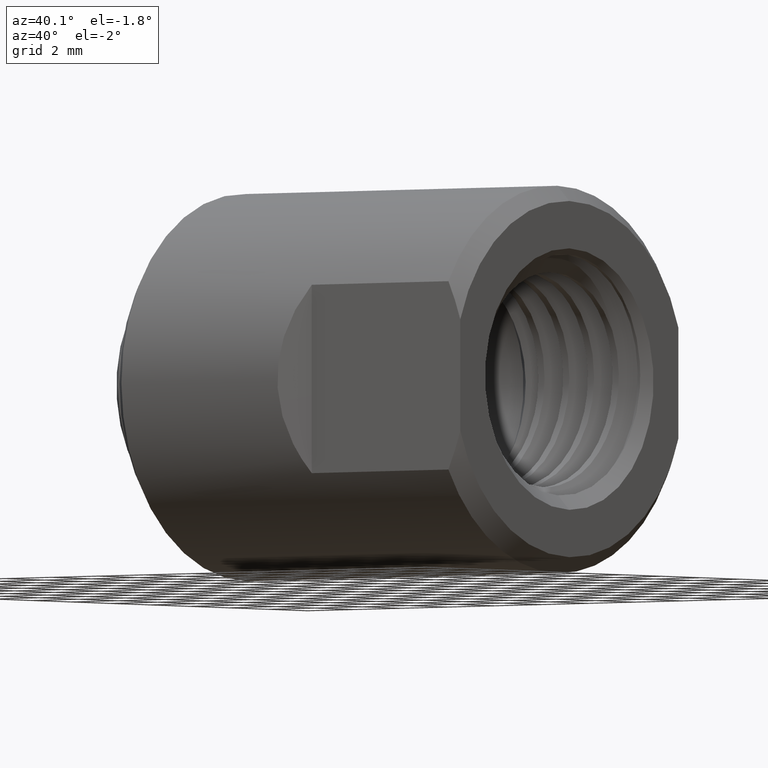
[diagram: clean part render]
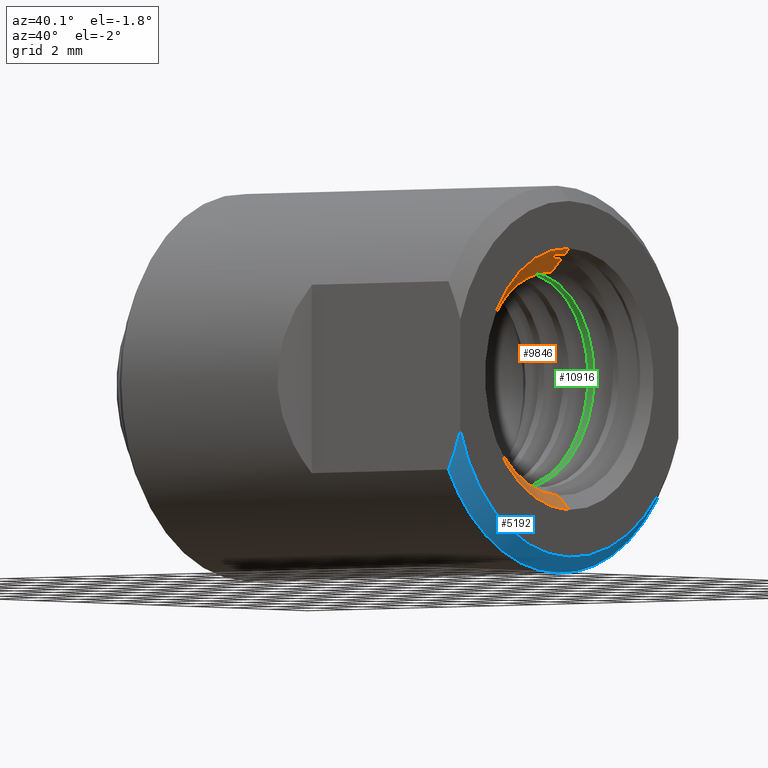
[diagram: same view with three faces highlighted in distinct colors, each labeled with its STEP entity id]
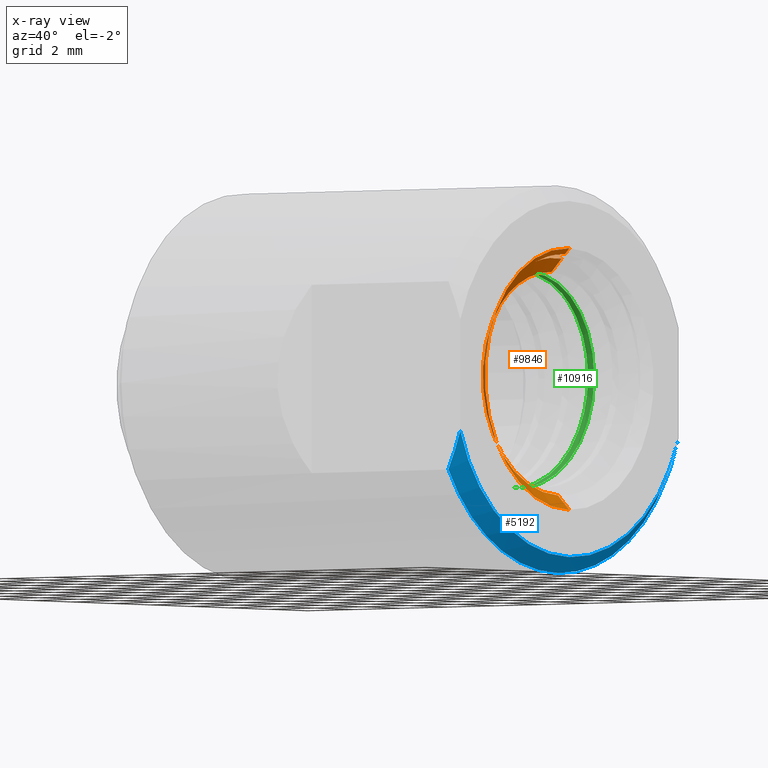
[diagram: x-ray of the same camera — body ghosted, the three highlighted faces saturated]
A machine part, auxiliary view with three faces highlighted in distinct colors.
The next image is the same camera in x-ray (body ghosted, the three faces saturated) — at least one of them is partly hidden behind the body in this view.
Their STEP definitions:

[orange] entity #9846 — the highlighted conical surface has half-angle 45 deg.
#67 = EDGE_CURVE ( 'NONE', #739, #460, #4505, .T. ) ;
#121 = DIRECTION ( 'NONE',  ( 0.0000000000000000000, 0.0000000000000000000, 1.000000000000000000 ) ) ;
#299 = CARTESIAN_POINT ( 'NONE',  ( 0.4915527447916668291, -0.03930680124036260714, 0.1564951155856732778 ) ) ;
#379 = EDGE_CURVE ( 'NONE', #5876, #460, #3109, .T. ) ;
#410 = CARTESIAN_POINT ( 'NONE',  ( 0.4776101803002633095, -0.08158505850454679520, -0.1226726051499598125 ) ) ;
#460 = VERTEX_POINT ( 'NONE', #3904 ) ;
#491 = CARTESIAN_POINT ( 'NONE',  ( 0.4895870464638107933, -0.03899068432501045373, 0.1545434023646650445 ) ) ;
#655 = B_SPLINE_CURVE_WITH_KNOTS ( 'NONE', 3,
 ( #5055, #9853, #299, #8841, #3184, #4401 ),
 .UNSPECIFIED., .F., .F.,
 ( 4, 2, 4 ),
 ( 0.0000000000000000000, 0.0007594702687717084936, 0.001518940537543416987 ),
 .UNSPECIFIED. ) ;
#691 = CARTESIAN_POINT ( 'NONE',  ( 0.4701904074059487515, -0.09903312697300141465, 0.09883611300029747360 ) ) ;
#739 = VERTEX_POINT ( 'NONE', #10100 ) ;
#1244 = ORIENTED_EDGE ( 'NONE', *, *, #67, .F. ) ;
#1283 = ORIENTED_EDGE ( 'NONE', *, *, #4846, .F. ) ;
#1286 = CARTESIAN_POINT ( 'NONE',  ( 0.4758200099182061660, -0.1240526278306743058, -0.07610434665026920287 ) ) ;
#1349 = CARTESIAN_POINT ( 'NONE',  ( 0.4741695180830897138, -0.1419164985477894270, -0.02373065115988236273 ) ) ;
#1460 = CARTESIAN_POINT ( 'NONE',  ( 0.4708867791982034867, -0.1148343129867646084, 0.08114299980321745820 ) ) ;
#1609 = CARTESIAN_POINT ( 'NONE',  ( 0.4915527447916666626, -0.05821412288664623569, 0.1501635858038432580 ) ) ;
#1742 = ORIENTED_EDGE ( 'NONE', *, *, #6046, .T. ) ;
#1766 = CARTESIAN_POINT ( 'NONE',  ( 0.4706516482664995782, -0.1099144318919291347, 0.08731569001908691396 ) ) ;
#2036 = FACE_OUTER_BOUND ( 'NONE', #2793, .T. ) ;
#2160 = DIRECTION ( 'NONE',  ( 0.0000000000000000000, 0.0000000000000000000, -1.000000000000000000 ) ) ;
#2189 = DIRECTION ( 'NONE',  ( -1.000000000000000000, -0.0000000000000000000, -0.0000000000000000000 ) ) ;
#2233 = CARTESIAN_POINT ( 'NONE',  ( 0.4762800683238508914, -0.1154027267367484649, -0.08942628109433255201 ) ) ;
#2287 = CARTESIAN_POINT ( 'NONE',  ( 0.4755831574169424592, -0.1278590683751489321, -0.06901871546260902879 ) ) ;
#2345 = VECTOR ( 'NONE', #8581, 39.37007874015748143 ) ;
#2381 = CIRCLE ( 'NONE', #8006, 0.1385000000000001230 ) ;
#2391 = AXIS2_PLACEMENT_3D ( 'NONE', #5854, #9640, #2160 ) ;
#2407 = CARTESIAN_POINT ( 'NONE',  ( 0.4716115838939051175, -0.1275322393848584979, 0.06091556452336734789 ) ) ;
#2793 = EDGE_LOOP ( 'NONE', ( #6738, #9620, #8803, #1742, #7848, #1244, #1283, #6464 ) ) ;
#3109 = LINE ( 'NONE', #6938, #9951 ) ;
#3184 = CARTESIAN_POINT ( 'NONE',  ( 0.4915527447916666626, -0.009908120083162172756, 0.1610527447916245691 ) ) ;
#3289 = CARTESIAN_POINT ( 'NONE',  ( 0.4771571906574074706, -0.09406711002521324361, -0.1127962546387063225 ) ) ;
#3349 = CARTESIAN_POINT ( 'NONE',  ( 0.4728075541703335993, -0.1405473323777607086, 0.02367403333333943996 ) ) ;
#3670 = VERTEX_POINT ( 'NONE', #5109 ) ;
#3692 = EDGE_CURVE ( 'NONE', #7106, #3670, #7429, .T. ) ;
#3904 = CARTESIAN_POINT ( 'NONE',  ( 0.4989999999999999991, 2.063529856563291748E-17, 0.1685000000000001219 ) ) ;
#4284 = CARTESIAN_POINT ( 'NONE',  ( 0.4737127277950652915, -0.1432094709835527724, -0.007964845348402339875 ) ) ;
#4297 = AXIS2_PLACEMENT_3D ( 'NONE', #9864, #8305, #12084 ) ;
#4400 = CARTESIAN_POINT ( 'NONE',  ( 0.4796685091265875389, -0.01599028763964425309, -0.1491685091265876340 ) ) ;
#4401 = CARTESIAN_POINT ( 'NONE',  ( 0.4915527447916667181, -6.863352009929323174E-13, 0.1610527447916667299 ) ) ;
#4455 = CARTESIAN_POINT ( 'NONE',  ( 0.4699631494161579659, -0.09302570181943249639, 0.1042078400151091183 ) ) ;
#4505 = CIRCLE ( 'NONE', #4297, 0.1685000000000001219 ) ;
#4846 = EDGE_CURVE ( 'NONE', #7383, #739, #9324, .T. ) ;
#5055 = CARTESIAN_POINT ( 'NONE',  ( 0.4915527447916666626, -0.05821412288664623569, 0.1501635858038432580 ) ) ;
#5096 = CARTESIAN_POINT ( 'NONE',  ( 0.4800945554337723853, 1.832004934818407092E-17, -0.1495945554337724526 ) ) ;
#5109 = CARTESIAN_POINT ( 'NONE',  ( 0.4857593468793920954, 3.588447072287897684E-15, 0.1552593468793923848 ) ) ;
#5222 = CARTESIAN_POINT ( 'NONE',  ( 0.4769367087328941213, -0.09993016862499785880, -0.1073310452335543286 ) ) ;
#5372 = VERTEX_POINT ( 'NONE', #10505 ) ;
#5854 = CARTESIAN_POINT ( 'NONE',  ( 0.4989999999999999991, 0.0000000000000000000, 0.0000000000000000000 ) ) ;
#5876 = VERTEX_POINT ( 'NONE', #9598 ) ;
#6026 = CARTESIAN_POINT ( 'NONE',  ( 0.4915527447916666626, -0.05821412288664623569, 0.1501635858038432580 ) ) ;
#6046 = EDGE_CURVE ( 'NONE', #6884, #5876, #655, .T. ) ;
#6110 = CARTESIAN_POINT ( 'NONE',  ( 0.4751131348367165219, -0.1341717202733407610, -0.05452806735980102182 ) ) ;
#6173 = CARTESIAN_POINT ( 'NONE',  ( 0.4792245641552336788, -0.03148137816995256327, -0.1462263711820968592 ) ) ;
#6233 = CARTESIAN_POINT ( 'NONE',  ( 0.4778383595502754821, -0.07501463675179659285, -0.1270575704882246360 ) ) ;
#6345 = CARTESIAN_POINT ( 'NONE',  ( 0.4690000000000005276, -0.06640731048727288588, 0.1215414296190684140 ) ) ;
#6406 = CARTESIAN_POINT ( 'NONE',  ( 0.4694899725545191305, -0.08029849742260322665, 0.1137253219688434819 ) ) ;
#6464 = ORIENTED_EDGE ( 'NONE', *, *, #12212, .T. ) ;
#6484 = DIRECTION ( 'NONE',  ( 0.7071067811865469066, 8.659560562354940254E-17, 0.7071067811865481278 ) ) ;
#6738 = ORIENTED_EDGE ( 'NONE', *, *, #8365, .T. ) ;
#6884 = VERTEX_POINT ( 'NONE', #1609 ) ;
#6938 = CARTESIAN_POINT ( 'NONE',  ( 0.4989999999999999991, 2.063529856563291748E-17, 0.1685000000000001219 ) ) ;
#6996 = CARTESIAN_POINT ( 'NONE',  ( 0.4785305098134057800, -0.05397527334740876565, -0.1380697646374443310 ) ) ;
#7106 = VERTEX_POINT ( 'NONE', #8965 ) ;
#7174 = CARTESIAN_POINT ( 'NONE',  ( 0.4723340870181859108, -0.1365959076660634708, 0.03900049702243495175 ) ) ;
#7383 = VERTEX_POINT ( 'NONE', #8767 ) ;
#7429 = LINE ( 'NONE', #8370, #11962 ) ;
#7514 = B_SPLINE_CURVE_WITH_KNOTS ( 'NONE', 3,
 ( #5096, #4400, #6173, #6996, #10011, #6233, #410, #3289, #5222, #9118, #2233, #1286, #2287, #6110, #9063, #9952, #1349, #4284, #8113, #11955, #3349, #7174, #11015, #2407, #10067, #1460, #1766, #691, #4455, #6406, #9240, #6345 ),
 .UNSPECIFIED., .F., .F.,
 ( 4, 2, 2, 2, 2, 2, 2, 2, 2, 2, 2, 2, 2, 2, 2, 4 ),
 ( 0.01070975112320856140, 0.01191170811350595812, 0.01251268660865465648, 0.01311366510380335484, 0.01371464359895205321, 0.01431562209410074983, 0.01491660058924944819, 0.01551757908439814655, 0.01611855757954684665, 0.01671953607469554154, 0.01732051456984424337, 0.01792149306499294173, 0.01852247156014164009, 0.01912345005529033845, 0.01972442855043903681, 0.02032540704558773517 ),
 .UNSPECIFIED. ) ;
#7693 = CARTESIAN_POINT ( 'NONE',  ( 0.4989999999999999991, 0.0000000000000000000, -0.1685000000000001219 ) ) ;
#7848 = ORIENTED_EDGE ( 'NONE', *, *, #379, .T. ) ;
#8006 = AXIS2_PLACEMENT_3D ( 'NONE', #8713, #2189, #121 ) ;
#8113 = CARTESIAN_POINT ( 'NONE',  ( 0.4734955935724519671, -0.1432149389344598289, -7.357591546745891910E-05 ) ) ;
#8147 = CARTESIAN_POINT ( 'NONE',  ( 0.4857593468793920954, 3.588447072287897684E-15, 0.1552593468793923848 ) ) ;
#8305 = DIRECTION ( 'NONE',  ( -1.000000000000000000, -0.0000000000000000000, -0.0000000000000000000 ) ) ;
#8365 = EDGE_CURVE ( 'NONE', #5372, #7106, #2381, .T. ) ;
#8370 = CARTESIAN_POINT ( 'NONE',  ( 0.4989999999999999991, 2.063529856563291748E-17, 0.1685000000000001219 ) ) ;
#8581 = DIRECTION ( 'NONE',  ( 0.7071067811865469066, 0.0000000000000000000, -0.7071067811865481278 ) ) ;
#8713 = CARTESIAN_POINT ( 'NONE',  ( 0.4690000000000000280, 0.0000000000000000000, 0.0000000000000000000 ) ) ;
#8767 = CARTESIAN_POINT ( 'NONE',  ( 0.4800945554337723853, 1.832004934818407092E-17, -0.1495945554337724526 ) ) ;
#8803 = ORIENTED_EDGE ( 'NONE', *, *, #9388, .T. ) ;
#8841 = CARTESIAN_POINT ( 'NONE',  ( 0.4915527447916666626, -0.01986872112651999131, 0.1601280105000969511 ) ) ;
#8965 = CARTESIAN_POINT ( 'NONE',  ( 0.4690000000000000280, 1.696135816819085983E-17, 0.1385000000000001230 ) ) ;
#9063 = CARTESIAN_POINT ( 'NONE',  ( 0.4748777633786478436, -0.1367227979840052454, -0.04706050369823795709 ) ) ;
#9091 = CARTESIAN_POINT ( 'NONE',  ( 0.4866895328469820203, -0.009708757961036136239, 0.1561895328469848077 ) ) ;
#9118 = CARTESIAN_POINT ( 'NONE',  ( 0.4765032948478395980, -0.1105746560806090267, -0.09566864557892285070 ) ) ;
#9240 = CARTESIAN_POINT ( 'NONE',  ( 0.4692478781841656899, -0.07354991533216366506, 0.1179213467346184735 ) ) ;
#9324 = LINE ( 'NONE', #7693, #2345 ) ;
#9388 = EDGE_CURVE ( 'NONE', #3670, #6884, #11288, .T. ) ;
#9598 = CARTESIAN_POINT ( 'NONE',  ( 0.4915527447916667181, -6.863352009929323174E-13, 0.1610527447916667299 ) ) ;
#9620 = ORIENTED_EDGE ( 'NONE', *, *, #3692, .T. ) ;
#9640 = DIRECTION ( 'NONE',  ( 1.000000000000000000, 0.0000000000000000000, 0.0000000000000000000 ) ) ;
#9846 = ADVANCED_FACE ( 'NONE', ( #2036 ), #12427, .F. ) ;
#9853 = CARTESIAN_POINT ( 'NONE',  ( 0.4915527447916666626, -0.04891633227414004387, 0.1537680730195240542 ) ) ;
#9864 = CARTESIAN_POINT ( 'NONE',  ( 0.4989999999999999991, 0.0000000000000000000, 0.0000000000000000000 ) ) ;
#9951 = VECTOR ( 'NONE', #10784, 39.37007874015748143 ) ;
#9952 = CARTESIAN_POINT ( 'NONE',  ( 0.4744062968716619144, -0.1406006414756844347, -0.03167582413493125193 ) ) ;
#10011 = CARTESIAN_POINT ( 'NONE',  ( 0.4782978605494391799, -0.06123132964561497915, -0.1347485124341986085 ) ) ;
#10067 = CARTESIAN_POINT ( 'NONE',  ( 0.4713657760234282734, -0.1236340552263995585, 0.06797385766248889571 ) ) ;
#10100 = CARTESIAN_POINT ( 'NONE',  ( 0.4989999999999999991, 0.0000000000000000000, -0.1685000000000001219 ) ) ;
#10505 = CARTESIAN_POINT ( 'NONE',  ( 0.4690000000000005276, -0.06640731048727288588, 0.1215414296190684140 ) ) ;
#10784 = DIRECTION ( 'NONE',  ( 0.7071067811865469066, 8.659560562354940254E-17, 0.7071067811865481278 ) ) ;
#10810 = CARTESIAN_POINT ( 'NONE',  ( 0.4905727524547557894, -0.04871766080814701055, 0.1527940354736308515 ) ) ;
#11015 = CARTESIAN_POINT ( 'NONE',  ( 0.4720949244355503449, -0.1339936757899959086, 0.04644907371375061461 ) ) ;
#11288 = B_SPLINE_CURVE_WITH_KNOTS ( 'NONE', 3,
 ( #8147, #9091, #11749, #491, #10810, #6026 ),
 .UNSPECIFIED., .F., .F.,
 ( 4, 2, 4 ),
 ( 0.004019192020958956349, 0.004764128173655891169, 0.005509064326352825121 ),
 .UNSPECIFIED. ) ;
#11749 = CARTESIAN_POINT ( 'NONE',  ( 0.4876417787206582810, -0.01944834193875236844, 0.1562387562076911485 ) ) ;
#11955 = CARTESIAN_POINT ( 'NONE',  ( 0.4730437923442198378, -0.1418951610330292101, 0.01572515111410146410 ) ) ;
#11962 = VECTOR ( 'NONE', #6484, 39.37007874015748143 ) ;
#12084 = DIRECTION ( 'NONE',  ( 0.0000000000000000000, 0.0000000000000000000, 1.000000000000000000 ) ) ;
#12212 = EDGE_CURVE ( 'NONE', #7383, #5372, #7514, .T. ) ;
#12427 = CONICAL_SURFACE ( 'NONE', #2391, 0.1685000000000001219, 0.7853981633974491672 ) ;

[blue] entity #5192 — the highlighted conical surface has half-angle 45 deg.
#1152 = CARTESIAN_POINT ( 'NONE',  ( 0.4867937892024932212, -0.2180000000000000271, -0.1053276808206023707 ) ) ;
#1312 = CIRCLE ( 'NONE', #7922, 0.2495000000000000551 ) ;
#1437 = VERTEX_POINT ( 'NONE', #7348 ) ;
#1480 = CARTESIAN_POINT ( 'NONE',  ( 0.4790000000000000924, 3.055493763872647498E-17, -0.2495000000000001106 ) ) ;
#1524 = DIRECTION ( 'NONE',  ( 0.0000000000000000000, 0.0000000000000000000, 1.000000000000000000 ) ) ;
#1797 = CARTESIAN_POINT ( 'NONE',  ( 0.4790000000000000924, 0.0000000000000000000, 0.0000000000000000000 ) ) ;
#1891 = ORIENTED_EDGE ( 'NONE', *, *, #4448, .F. ) ;
#2294 = FACE_OUTER_BOUND ( 'NONE', #8552, .T. ) ;
#2324 = CARTESIAN_POINT ( 'NONE',  ( 0.4865271152024648882, 0.2180000000000000826, -0.1052806634597102942 ) ) ;
#2434 = EDGE_CURVE ( 'NONE', #11269, #8469, #1312, .T. ) ;
#3068 = CARTESIAN_POINT ( 'NONE',  ( 0.4790000000000000924, 0.2180000000000000271, -0.1213517614210853218 ) ) ;
#3095 = CARTESIAN_POINT ( 'NONE',  ( 0.4936436883126585906, -0.2180000000000000271, -0.08887311717590522242 ) ) ;
#3144 = CARTESIAN_POINT ( 'NONE',  ( 0.4790000000000000924, 0.2180000000000000271, -0.1213517614210853218 ) ) ;
#3152 = CONICAL_SURFACE ( 'NONE', #8961, 0.2495000000000000551, 0.7853981633974491672 ) ;
#3790 = CARTESIAN_POINT ( 'NONE',  ( 0.4790000000000000924, -0.2180000000000000271, -0.1213517614210853496 ) ) ;
#4034 = ORIENTED_EDGE ( 'NONE', *, *, #10189, .F. ) ;
#4237 = DIRECTION ( 'NONE',  ( -1.000000000000000000, -0.0000000000000000000, -0.0000000000000000000 ) ) ;
#4286 = B_SPLINE_CURVE_WITH_KNOTS ( 'NONE', 3,
 ( #8206, #4318, #5134, #2324, #9923, #3144 ),
 .UNSPECIFIED., .F., .F.,
 ( 4, 2, 4 ),
 ( 0.01744746444429472187, 0.01812750414344126149, 0.01880754384258779763 ),
 .UNSPECIFIED. ) ;
#4318 = CARTESIAN_POINT ( 'NONE',  ( 0.4963353650770626069, 0.2180000000000000271, -0.08026198698383904540 ) ) ;
#4448 = EDGE_CURVE ( 'NONE', #9023, #5037, #11475, .T. ) ;
#4484 = CARTESIAN_POINT ( 'NONE',  ( 0.4990000000000000546, 0.0000000000000000000, 0.0000000000000000000 ) ) ;
#5037 = VERTEX_POINT ( 'NONE', #7756 ) ;
#5134 = CARTESIAN_POINT ( 'NONE',  ( 0.4932545631404060549, 0.2180000000000000826, -0.08873306421248332299 ) ) ;
#5192 = ADVANCED_FACE ( 'NONE', ( #2294 ), #3152, .T. ) ;
#5345 = CARTESIAN_POINT ( 'NONE',  ( 0.4790000000000000924, 0.0000000000000000000, 0.0000000000000000000 ) ) ;
#5812 = CIRCLE ( 'NONE', #6023, 0.2495000000000000551 ) ;
#6023 = AXIS2_PLACEMENT_3D ( 'NONE', #1797, #12153, #6492 ) ;
#6118 = CARTESIAN_POINT ( 'NONE',  ( 0.4790000000000000924, 0.0000000000000000000, 0.0000000000000000000 ) ) ;
#6492 = DIRECTION ( 'NONE',  ( 0.0000000000000000000, 0.0000000000000000000, 1.000000000000000000 ) ) ;
#6849 = EDGE_CURVE ( 'NONE', #1437, #5037, #7518, .T. ) ;
#6921 = CARTESIAN_POINT ( 'NONE',  ( 0.4990000000000000546, -0.2180000000000000271, -0.07173736822605079888 ) ) ;
#7314 = DIRECTION ( 'NONE',  ( 0.0000000000000000000, 0.0000000000000000000, 1.000000000000000000 ) ) ;
#7348 = CARTESIAN_POINT ( 'NONE',  ( 0.4990000000000000546, 0.2180000000000000271, -0.07173736822605079888 ) ) ;
#7518 = CIRCLE ( 'NONE', #12127, 0.2295000000000000373 ) ;
#7756 = CARTESIAN_POINT ( 'NONE',  ( 0.4990000000000000546, -0.2180000000000000271, -0.07173736822605079888 ) ) ;
#7922 = AXIS2_PLACEMENT_3D ( 'NONE', #5345, #8069, #9188 ) ;
#8069 = DIRECTION ( 'NONE',  ( -1.000000000000000000, -0.0000000000000000000, -0.0000000000000000000 ) ) ;
#8206 = CARTESIAN_POINT ( 'NONE',  ( 0.4990000000000000546, 0.2180000000000000271, -0.07173736822605079888 ) ) ;
#8469 = VERTEX_POINT ( 'NONE', #1480 ) ;
#8552 = EDGE_LOOP ( 'NONE', ( #4034, #9003, #1891, #9251, #11053 ) ) ;
#8961 = AXIS2_PLACEMENT_3D ( 'NONE', #6118, #4237, #1524 ) ;
#9003 = ORIENTED_EDGE ( 'NONE', *, *, #6849, .T. ) ;
#9023 = VERTEX_POINT ( 'NONE', #3790 ) ;
#9188 = DIRECTION ( 'NONE',  ( 0.0000000000000000000, 0.0000000000000000000, 1.000000000000000000 ) ) ;
#9251 = ORIENTED_EDGE ( 'NONE', *, *, #11441, .F. ) ;
#9636 = CARTESIAN_POINT ( 'NONE',  ( 0.4790000000000000924, -0.2180000000000000271, -0.1213517614210853496 ) ) ;
#9923 = CARTESIAN_POINT ( 'NONE',  ( 0.4828757988457594852, 0.2180000000000000271, -0.1133830941294644984 ) ) ;
#10189 = EDGE_CURVE ( 'NONE', #1437, #11269, #4286, .T. ) ;
#11053 = ORIENTED_EDGE ( 'NONE', *, *, #2434, .F. ) ;
#11269 = VERTEX_POINT ( 'NONE', #3068 ) ;
#11441 = EDGE_CURVE ( 'NONE', #8469, #9023, #5812, .T. ) ;
#11475 = B_SPLINE_CURVE_WITH_KNOTS ( 'NONE', 3,
 ( #9636, #1152, #3095, #6921 ),
 .UNSPECIFIED., .F., .F.,
 ( 4, 4 ),
 ( 0.01238073234789191512, 0.01374081069623237124 ),
 .UNSPECIFIED. ) ;
#12127 = AXIS2_PLACEMENT_3D ( 'NONE', #4484, #12163, #7314 ) ;
#12153 = DIRECTION ( 'NONE',  ( -1.000000000000000000, -0.0000000000000000000, -0.0000000000000000000 ) ) ;
#12163 = DIRECTION ( 'NONE',  ( -1.000000000000000000, -0.0000000000000000000, -0.0000000000000000000 ) ) ;

[green] entity #10916 — the highlighted cylindrical surface (partial cylindrical patch) has radius 3.5179 mm, axis along (-1, -0, -0).
#21 = CARTESIAN_POINT ( 'NONE',  ( 0.4233020516686449297, 0.01502659019250217852, 0.1377406292639371810 ) ) ;
#82 = CARTESIAN_POINT ( 'NONE',  ( 0.4196011897962964587, 0.08487903630135031074, 0.1094456596478362992 ) ) ;
#148 = CARTESIAN_POINT ( 'NONE',  ( 0.4162615842808974342, 0.1276208349118939656, 0.05437963125190835995 ) ) ;
#211 = CARTESIAN_POINT ( 'NONE',  ( 0.4153158080536083485, 0.1337529442212822273, 0.03607527198141607938 ) ) ;
#271 = CARTESIAN_POINT ( 'NONE',  ( 0.4187288896386363590, 0.09885421063856782153, 0.09703075703654105710 ) ) ;
#327 = ORIENTED_EDGE ( 'NONE', *, *, #10381, .F. ) ;
#332 = CARTESIAN_POINT ( 'NONE',  ( 0.4036410807326403782, 0.01029248847904431878, -0.1381170394630452936 ) ) ;
#392 = CARTESIAN_POINT ( 'NONE',  ( 0.4041861412333130898, 0.02172934052279173675, -0.1368514031532835074 ) ) ;
#406 = VERTEX_POINT ( 'NONE', #4172 ) ;
#449 = CARTESIAN_POINT ( 'NONE',  ( 0.4104343545179469643, 0.1233032917632808506, -0.06307583980325659478 ) ) ;
#501 = CARTESIAN_POINT ( 'NONE',  ( 0.4036657480543224819, 0.01081904299727364481, -0.1380769835261935197 ) ) ;
#557 = CARTESIAN_POINT ( 'NONE',  ( 0.4119536217150290280, 0.1347048051253312562, -0.03420412115876941134 ) ) ;
#795 = CARTESIAN_POINT ( 'NONE',  ( 0.0000000000000000000, 0.0000000000000000000, 0.1385000000000000953 ) ) ;
#873 =( BOUNDED_CURVE ( )  B_SPLINE_CURVE ( 2, ( #9975, #6016, #7137, #1370, #1252, #2427, #5001, #4073, #11865 ),
 .UNSPECIFIED., .F., .F. ) 
 B_SPLINE_CURVE_WITH_KNOTS ( ( 3, 2, 2, 2, 3 ),
 ( 0.2671021835041478276, 0.2837960694565113684, 0.3004899558951296679, 0.3171838423337479673, 0.3338777576382067069 ),
 .UNSPECIFIED. ) 
 CURVE ( )  GEOMETRIC_REPRESENTATION_ITEM ( )  RATIONAL_B_SPLINE_CURVE ( ( 1.000000000000000000, 0.9238795325112867385, 1.000000000000000000, 0.9238795325112867385, 1.000000000000000000, 0.9238795325112867385, 1.000000000000000000, 0.9238795325112867385, 1.000000000000000000 ) ) 
 REPRESENTATION_ITEM ( '' )  );
#959 = CARTESIAN_POINT ( 'NONE',  ( 0.4149807275214340008, 0.1353332191571640086, 0.02944911467322912021 ) ) ;
#1026 = CARTESIAN_POINT ( 'NONE',  ( 0.4219909406481021086, 0.04160982895477319948, 0.1321140911693945708 ) ) ;
#1082 = CARTESIAN_POINT ( 'NONE',  ( 0.4184647047807021902, 0.1028145621885424160, 0.09280058604115649923 ) ) ;
#1149 = CARTESIAN_POINT ( 'NONE',  ( 0.4172756973375850165, 0.1178352864710921627, 0.07278142733170565870 ) ) ;
#1213 = CARTESIAN_POINT ( 'NONE',  ( 0.4224113697813032253, 0.03333226781268630590, 0.1345331817828122611 ) ) ;
#1252 = CARTESIAN_POINT ( 'NONE',  ( 0.4240000001137995134, 0.1385000000000000953, 8.480679084095428374E-18 ) ) ;
#1271 = CARTESIAN_POINT ( 'NONE',  ( 0.4060014621917127919, 0.05730881539744080849, -0.1260890920880958221 ) ) ;
#1332 = CARTESIAN_POINT ( 'NONE',  ( 0.4132893985672057569, 0.1385011883304619884, -0.006336162655571078543 ) ) ;
#1370 = CARTESIAN_POINT ( 'NONE',  ( 0.4266041667804662540, 0.1385000000000000953, 0.05736857838867372161 ) ) ;
#1389 = CARTESIAN_POINT ( 'NONE',  ( 0.4127797310246270057, 0.1374231765986021203, -0.01725695082759916288 ) ) ;
#1445 = CARTESIAN_POINT ( 'NONE',  ( 0.4104456603200130060, 0.1234082686216756708, -0.06287020409023016954 ) ) ;
#1499 = CARTESIAN_POINT ( 'NONE',  ( 0.4108565053417114199, 0.1269984490538536570, -0.05528434483740924527 ) ) ;
#1535 = VERTEX_POINT ( 'NONE', #5721 ) ;
#1963 = CARTESIAN_POINT ( 'NONE',  ( 0.4183187255816210315, 0.1049412889668359522, 0.09038884016628929985 ) ) ;
#2029 = CARTESIAN_POINT ( 'NONE',  ( 0.4175549391418444389, 0.1147087400337162139, 0.07762971279906330513 ) ) ;
#2086 = CARTESIAN_POINT ( 'NONE',  ( 0.4190336907427624213, 0.09414059749776140795, 0.1016822943830377052 ) ) ;
#2151 = CARTESIAN_POINT ( 'NONE',  ( 0.4151204182871965354, 0.1347089721930629369, 0.03221798730897745128 ) ) ;
#2216 = CARTESIAN_POINT ( 'NONE',  ( 0.4214331711576259631, 0.05232024916143752924, 0.1282734204973948189 ) ) ;
#2272 = CARTESIAN_POINT ( 'NONE',  ( 0.4089318140282808267, 0.1062562857249973319, -0.08929799780004900323 ) ) ;
#2335 = CARTESIAN_POINT ( 'NONE',  ( 0.4037560890488658960, 0.01273900679603424263, -0.1379164899385630361 ) ) ;
#2389 = CARTESIAN_POINT ( 'NONE',  ( 0.4104264621387813117, 0.1232297799919217507, -0.06321926933155282147 ) ) ;
#2427 = CARTESIAN_POINT ( 'NONE',  ( 0.4213958334471328837, 0.1385000000000000953, -0.05736857838867370774 ) ) ;
#2444 = CARTESIAN_POINT ( 'NONE',  ( 0.4031633508095884832, -1.455182013864347288E-07, -0.1384999999998425269 ) ) ;
#2456 = ORIENTED_EDGE ( 'NONE', *, *, #5839, .T. ) ;
#2601 = CARTESIAN_POINT ( 'NONE',  ( 0.4239839811284579763, 0.0003525682727899925699, 0.1385000002188382928 ) ) ;
#2835 = EDGE_LOOP ( 'NONE', ( #9079, #327, #2456, #4494 ) ) ;
#2900 = CARTESIAN_POINT ( 'NONE',  ( 0.4139256455663140044, 0.1383017069959373568, 0.007461593012144254224 ) ) ;
#2968 = CARTESIAN_POINT ( 'NONE',  ( 0.4218224083491568521, 0.04487621602214986183, 0.1310286090954168314 ) ) ;
#3031 = CARTESIAN_POINT ( 'NONE',  ( 0.4197864154978320772, 0.08179057490946885223, 0.1117845399328949718 ) ) ;
#3091 = CARTESIAN_POINT ( 'NONE',  ( 0.4150226463145749722, 0.1351513113834755253, 0.03028096725350781435 ) ) ;
#3154 = CARTESIAN_POINT ( 'NONE',  ( 0.4145628964073176381, 0.1369737325416478246, 0.02101776763456678424 ) ) ;
#3274 = CARTESIAN_POINT ( 'NONE',  ( 0.4053162751185225288, 0.04455206761808722105, -0.1317335251843246291 ) ) ;
#3332 = CARTESIAN_POINT ( 'NONE',  ( 0.4082061925906332323, 0.09528434008219183182, -0.1005145979759285019 ) ) ;
#3390 = CARTESIAN_POINT ( 'NONE',  ( 0.4059688765867128235, 0.05670393501242038808, -0.1263626706312217518 ) ) ;
#3445 = CARTESIAN_POINT ( 'NONE',  ( 0.4083803344313373107, 0.09800060782809633109, -0.09787948880518239358 ) ) ;
#3845 = CARTESIAN_POINT ( 'NONE',  ( 0.4149527779884154555, 0.1354527851227386170, 0.02889417873847924950 ) ) ;
#3905 = CARTESIAN_POINT ( 'NONE',  ( 0.4195508696230624834, 0.08571272568037321959, 0.1087949481474497493 ) ) ;
#3971 = CARTESIAN_POINT ( 'NONE',  ( 0.4194540200256606788, 0.08731070656922476636, 0.1075132369256628639 ) ) ;
#4039 = CARTESIAN_POINT ( 'NONE',  ( 0.4194610705427390673, 0.08719451742556728890, 0.1076074891760486901 ) ) ;
#4073 = CARTESIAN_POINT ( 'NONE',  ( 0.4161875001137995689, 0.05736857838867372161, -0.1385000000000000953 ) ) ;
#4096 = CARTESIAN_POINT ( 'NONE',  ( 0.4179459044252058497, 0.1100380454182761231, 0.08427743144299625067 ) ) ;
#4138 = LINE ( 'NONE', #11393, #4365 ) ;
#4154 = CARTESIAN_POINT ( 'NONE',  ( 0.4071976324930297042, 0.07871560253671884555, -0.1140381681254097196 ) ) ;
#4172 = CARTESIAN_POINT ( 'NONE',  ( 0.4135813062538723495, -9.040072565279954253E-08, -0.1384999999999394493 ) ) ;
#4213 = CARTESIAN_POINT ( 'NONE',  ( 0.4123543862509242985, 0.1361218945091153265, -0.02603028149669234237 ) ) ;
#4269 = CARTESIAN_POINT ( 'NONE',  ( 0.4126519990569624263, 0.1370661485064847418, -0.01991612201383663808 ) ) ;
#4294 = CARTESIAN_POINT ( 'NONE',  ( 0.4031633508095884832, -1.455182013864347288E-07, -0.1384999999998425269 ) ) ;
#4326 = CARTESIAN_POINT ( 'NONE',  ( 0.4105018815359693929, 0.1239263598244277620, -0.06184556131669452506 ) ) ;
#4365 = VECTOR ( 'NONE', #5722, 39.37007874015748143 ) ;
#4383 = CARTESIAN_POINT ( 'NONE',  ( 0.4102084396150445511, 0.1211955724029707415, -0.06717961239716527255 ) ) ;
#4412 = FACE_OUTER_BOUND ( 'NONE', #2835, .T. ) ;
#4494 = ORIENTED_EDGE ( 'NONE', *, *, #5527, .T. ) ;
#4775 = CARTESIAN_POINT ( 'NONE',  ( 0.4141223670233480925, 0.1380296302605677206, 0.01169839200967504045 ) ) ;
#4839 = CARTESIAN_POINT ( 'NONE',  ( 0.4197076607396832415, 0.08310847429367537731, 0.1108036298022824356 ) ) ;
#4896 = CARTESIAN_POINT ( 'NONE',  ( 0.4168148482989768033, 0.1226561652047397089, 0.06460529822134571110 ) ) ;
#4961 = CARTESIAN_POINT ( 'NONE',  ( 0.4174469808885917788, 0.1159406568915524044, 0.07576653890011256220 ) ) ;
#5001 = CARTESIAN_POINT ( 'NONE',  ( 0.4187916667804662540, 0.09793428919433691537, -0.09793428919433690150 ) ) ;
#5023 = CARTESIAN_POINT ( 'NONE',  ( 0.4147559598136563719, 0.1362713802257277673, 0.02498240969873996922 ) ) ;
#5081 = CARTESIAN_POINT ( 'NONE',  ( 0.4040057218416474027, 0.01798851020614081891, -0.1373659376990773728 ) ) ;
#5145 = CARTESIAN_POINT ( 'NONE',  ( 0.4069718875745095832, 0.07482397667811424569, -0.1166585025407434612 ) ) ;
#5205 = CARTESIAN_POINT ( 'NONE',  ( 0.4107317971681723745, 0.1259684111548332874, -0.05761609830219461409 ) ) ;
#5257 = CARTESIAN_POINT ( 'NONE',  ( 0.4036512974398571707, 0.01051070464840584209, -0.1381006465540649542 ) ) ;
#5315 = CARTESIAN_POINT ( 'NONE',  ( 0.4105796321113235336, 0.1246307538812223281, -0.06042227677520749934 ) ) ;
#5355 = CARTESIAN_POINT ( 'NONE',  ( 0.4239999966349418670, -8.562759599586365468E-08, 0.1384999999999736164 ) ) ;
#5474 = CARTESIAN_POINT ( 'NONE',  ( 0.4239223302491891832, 0.001705607334104202247, 0.1384901656290178085 ) ) ;
#5527 = EDGE_CURVE ( 'NONE', #8546, #10836, #8080, .T. ) ;
#5534 = DIRECTION ( 'NONE',  ( -1.000000000000000000, -0.0000000000000000000, -0.0000000000000000000 ) ) ;
#5671 = CARTESIAN_POINT ( 'NONE',  ( 0.4238626479653945234, 0.003011152135152396232, 0.1384721283926972912 ) ) ;
#5721 = CARTESIAN_POINT ( 'NONE',  ( 0.4344166639071701530, 2.963567277447131014E-09, 0.1385000000000000675 ) ) ;
#5722 = DIRECTION ( 'NONE',  ( -1.000000000000000000, -0.0000000000000000000, -0.0000000000000000000 ) ) ;
#5782 = CARTESIAN_POINT ( 'NONE',  ( 0.4173245693435139736, 0.1173033290997535366, 0.07363735271351126710 ) ) ;
#5839 = EDGE_CURVE ( 'NONE', #1535, #8546, #9208, .T. ) ;
#5846 = CARTESIAN_POINT ( 'NONE',  ( 0.4173916085439088319, 0.1165643400237576371, 0.07480695049005679775 ) ) ;
#5904 = CARTESIAN_POINT ( 'NONE',  ( 0.4186026132384904619, 0.1007718715159381107, 0.09504565374021602120 ) ) ;
#5973 = CARTESIAN_POINT ( 'NONE',  ( 0.4149353995797816497, 0.1355258475671625440, 0.02854891553399196980 ) ) ;
#6016 = CARTESIAN_POINT ( 'NONE',  ( 0.4318125001137995134, 0.05736857838867371467, 0.1385000000000000953 ) ) ;
#6038 = CARTESIAN_POINT ( 'NONE',  ( 0.4112493231813281191, 0.1300085425624490088, -0.04783664795472173520 ) ) ;
#6095 = CARTESIAN_POINT ( 'NONE',  ( 0.4061756085448478548, 0.06052737053009598495, -0.1245879378449794572 ) ) ;
#6159 = CARTESIAN_POINT ( 'NONE',  ( 0.4077957805248572098, 0.08870992966694569992, -0.1064214512943224000 ) ) ;
#6215 = CARTESIAN_POINT ( 'NONE',  ( 0.4048034117172705781, 0.03430878459848808043, -0.1344546036314351878 ) ) ;
#6269 = CARTESIAN_POINT ( 'NONE',  ( 0.4110982963313963290, 0.1289173426803373324, -0.05072896747405526013 ) ) ;
#6314 = DIRECTION ( 'NONE',  ( -1.000000000000000000, -0.0000000000000000000, -0.0000000000000000000 ) ) ;
#6428 = CARTESIAN_POINT ( 'NONE',  ( 0.4239615708718763587, 0.0008452431408893810788, 0.1384980889267563853 ) ) ;
#6726 = CARTESIAN_POINT ( 'NONE',  ( 0.4138711818125277442, 0.1383581382181054142, 0.006283117946289899260 ) ) ;
#6796 = CARTESIAN_POINT ( 'NONE',  ( 0.4194717374214338990, 0.08701870822415416762, 0.1077498708920617831 ) ) ;
#6860 = CARTESIAN_POINT ( 'NONE',  ( 0.4235834909915289770, 0.009040181615624075587, 0.1382191464923230306 ) ) ;
#6918 = CARTESIAN_POINT ( 'NONE',  ( 0.4206895615517824982, 0.06625565210523683135, 0.1222297043225224894 ) ) ;
#6978 = CARTESIAN_POINT ( 'NONE',  ( 0.4230969033250991940, 0.01932532792360432475, 0.1372237854504319010 ) ) ;
#7096 = CARTESIAN_POINT ( 'NONE',  ( 0.4038118693974654394, 0.01391575720624409380, -0.1378015703288186233 ) ) ;
#7137 = CARTESIAN_POINT ( 'NONE',  ( 0.4292083334471328282, 0.09793428919433691537, 0.09793428919433691537 ) ) ;
#7160 = CARTESIAN_POINT ( 'NONE',  ( 0.4066036126753297952, 0.06829242727065762408, -0.1205188379579137242 ) ) ;
#7216 = CARTESIAN_POINT ( 'NONE',  ( 0.4137338386958621661, 0.1384720836109887554, 0.003304025413302000627 ) ) ;
#7268 = CARTESIAN_POINT ( 'NONE',  ( 0.4082886168345484790, 0.09657909957147153834, -0.09927383757163242561 ) ) ;
#7668 = CARTESIAN_POINT ( 'NONE',  ( 0.4220892263707846093, 0.03968341709228594832, 0.1326997526382912573 ) ) ;
#7730 = CARTESIAN_POINT ( 'NONE',  ( 0.4183806428607207417, 0.1040470370695718572, 0.09141372875124063879 ) ) ;
#7793 = CARTESIAN_POINT ( 'NONE',  ( 0.4184209198497233495, 0.1034580708907876928, 0.09208045833904082711 ) ) ;
#7858 = CARTESIAN_POINT ( 'NONE',  ( 0.4194535380250221102, 0.08731865442990147108, 0.1075068445393935063 ) ) ;
#7908 = EDGE_CURVE ( 'NONE', #406, #10836, #4138, .T. ) ;
#7917 = CARTESIAN_POINT ( 'NONE',  ( 0.4171457494835551505, 0.1192362706905390896, 0.07049906205337606868 ) ) ;
#7978 = CARTESIAN_POINT ( 'NONE',  ( 0.4034688866129851337, 0.006611828991229706971, -0.1383889120473946743 ) ) ;
#8041 = CARTESIAN_POINT ( 'NONE',  ( 0.4099945302439551020, 0.1189957855715556428, -0.07100645054376718279 ) ) ;
#8080 = B_SPLINE_CURVE_WITH_KNOTS ( 'NONE', 3,
 ( #10329, #2601, #6428, #5474, #5671, #9521, #6860, #21, #6978, #9691, #1213, #7668, #1026, #10695, #2968, #8681, #9632, #8742, #2216, #6918, #11580, #3031, #4839, #82, #3905, #8620, #6796, #4039, #3971, #7858, #8870, #2086, #271, #5904, #1082, #7793, #11642, #9565, #7730, #9819, #1963, #9754, #4096, #10632, #2029, #4961, #5846, #5782, #10760, #1149, #11702, #7917, #4896, #148, #8807, #11762, #211, #2151, #3091, #959, #3845, #5973, #5023, #3154, #10823, #4775, #11516, #2900, #6726, #10565, #9994, #10103, #7216, #10940, #1332, #12053, #9048, #1389, #9162, #4269, #4213, #557, #6038, #6269, #1499, #5205, #5315, #4326, #9934, #1445, #449, #2389, #4383, #8041, #11000, #2272, #8215, #3445, #7268, #8097, #11056, #3332, #8928, #11109, #6159, #9879, #4154, #5145, #7160, #11883, #8990, #6095, #11938, #1271, #3390, #3274, #6215, #392, #5081, #7096, #2335, #10050, #501, #5257, #8157, #332, #9102, #7978, #11996, #2444 ),
 .UNSPECIFIED., .F., .F.,
 ( 4, 2, 1, 1, 2, 2, 2, 1, 1, 2, 2, 2, 2, 2, 1, 1, 1, 2, 2, 2, 1, 1, 1, 2, 2, 2, 2, 2, 1, 1, 2, 2, 1, 1, 2, 1, 1, 1, 2, 2, 2, 2, 1, 1, 2, 2, 2, 2, 2, 2, 2, 2, 1, 1, 1, 1, 2, 2, 2, 2, 1, 1, 2, 2, 2, 2, 2, 2, 1, 2, 2, 2, 2, 1, 1, 1, 1, 2, 2, 4 ),
 ( 0.2829599504117262243, 0.2834676453846241007, 0.2839753403575219770, 0.2849907303033177297, 0.2870215101949092906, 0.2910830699780923569, 0.2951446297612753678, 0.2961600197070711760, 0.2966677146799690523, 0.2969215621664179627, 0.2971754096528669287, 0.2992061895444584896, 0.3073293091108246777, 0.3093600890024162386, 0.3103754789482119913, 0.3108831739211099232, 0.3111370214075588891, 0.3112639451507833721, 0.3113908688940078551, 0.3154524286771911434, 0.3174832085687827599, 0.3179909035416806362, 0.3182447510281296021, 0.3183716747713540851, 0.3184985985145785681, 0.3195139884603743763, 0.3235755482435576091, 0.3245909381893533618, 0.3250986331622512937, 0.3253524806487002596, 0.3254794043919246871, 0.3256063281351491701, 0.3276371080267407310, 0.3316986678099238528, 0.3357602275931069191, 0.3377910074846984800, 0.3388063974304942327, 0.3393140924033921646, 0.3395679398898410750, 0.3398217873762900409, 0.3438833471594731073, 0.3459141270510646682, 0.3464218220239625445, 0.3466756695104114550, 0.3468025932536359379, 0.3469295169968604209, 0.3479449069426561736, 0.3520064667258391844, 0.3540372466174306898, 0.3560680265090222507, 0.3641911460753882723, 0.3662219259669797777, 0.3672373159127755859, 0.3677450108856734623, 0.3679988583721223727, 0.3681257821153468557, 0.3681892439869590694, 0.3682527058585713386, 0.3723142656417538499, 0.3804373852081188723, 0.3814527751539145140, 0.3819604701268123348, 0.3822143176132611897, 0.3824681650997101556, 0.3844989449913015500, 0.3885605047744842833, 0.3926220645576670720, 0.3946528444492584664, 0.3956682343950541636, 0.3961759293679520400, 0.3966836243408499163, 0.4048067439072153828, 0.4088683036903981716, 0.4098836936361939243, 0.4103913886090917451, 0.4106452360955406000, 0.4107721598387651385, 0.4108356217103773522, 0.4108990835819895659, 0.4129298634735809603 ),
 .UNSPECIFIED. ) ;
#8097 = CARTESIAN_POINT ( 'NONE',  ( 0.4082493359752542017, 0.09596374779842274660, -0.09986636193689833740 ) ) ;
#8157 = CARTESIAN_POINT ( 'NONE',  ( 0.4036451599924501532, 0.01037963192147620638, -0.1381105178844187209 ) ) ;
#8215 = CARTESIAN_POINT ( 'NONE',  ( 0.4084590562430456262, 0.09919432044865064690, -0.09666448378879895220 ) ) ;
#8299 = CYLINDRICAL_SURFACE ( 'NONE', #11845, 0.1385000000000000953 ) ;
#8546 = VERTEX_POINT ( 'NONE', #5355 ) ;
#8620 = CARTESIAN_POINT ( 'NONE',  ( 0.4194972645265925282, 0.08659777078543237638, 0.1080890685200104756 ) ) ;
#8681 = CARTESIAN_POINT ( 'NONE',  ( 0.4217882775253231631, 0.04553426755830548150, 0.1308013824234088573 ) ) ;
#8742 = CARTESIAN_POINT ( 'NONE',  ( 0.4215896672080190477, 0.04935090996090778226, 0.1294524878571016724 ) ) ;
#8807 = CARTESIAN_POINT ( 'NONE',  ( 0.4158170935530661749, 0.1307699535987226214, 0.04584859027438067947 ) ) ;
#8870 = CARTESIAN_POINT ( 'NONE',  ( 0.4192392084705491850, 0.09084980629916046546, 0.1046329478874408331 ) ) ;
#8928 = CARTESIAN_POINT ( 'NONE',  ( 0.4081236973560650183, 0.09397833893226853474, -0.1017490715724420347 ) ) ;
#8990 = CARTESIAN_POINT ( 'NONE',  ( 0.4062769452450801788, 0.06238134559488088537, -0.1236634989956234693 ) ) ;
#9048 = CARTESIAN_POINT ( 'NONE',  ( 0.4128392072008450486, 0.1375825206702233905, -0.01599855405259288654 ) ) ;
#9079 = ORIENTED_EDGE ( 'NONE', *, *, #7908, .F. ) ;
#9102 = CARTESIAN_POINT ( 'NONE',  ( 0.4036420796539210154, 0.01031385277014443443, -0.1381154846301105299 ) ) ;
#9162 = CARTESIAN_POINT ( 'NONE',  ( 0.4127013544749780771, 0.1372076466879390000, -0.01889427184822064718 ) ) ;
#9208 = LINE ( 'NONE', #795, #9362 ) ;
#9362 = VECTOR ( 'NONE', #6314, 39.37007874015748143 ) ;
#9383 = DIRECTION ( 'NONE',  ( 0.0000000000000000000, 0.0000000000000000000, 1.000000000000000000 ) ) ;
#9521 = CARTESIAN_POINT ( 'NONE',  ( 0.4237176398548624934, 0.006161961731905012812, 0.1383840029383456849 ) ) ;
#9565 = CARTESIAN_POINT ( 'NONE',  ( 0.4183896833647065550, 0.1039150990099629718, 0.09156375501264406302 ) ) ;
#9632 = CARTESIAN_POINT ( 'NONE',  ( 0.4217744711600885932, 0.04580011698516823354, 0.1307087388953750984 ) ) ;
#9691 = CARTESIAN_POINT ( 'NONE',  ( 0.4226515623814283140, 0.02847797280202114117, 0.1356202074094724763 ) ) ;
#9754 = CARTESIAN_POINT ( 'NONE',  ( 0.4181446271449460461, 0.1073818797327607683, 0.08752397849221577042 ) ) ;
#9819 = CARTESIAN_POINT ( 'NONE',  ( 0.4183498300208062792, 0.1044963031081575094, 0.09090181062613933438 ) ) ;
#9879 = CARTESIAN_POINT ( 'NONE',  ( 0.4076095789682034343, 0.08565829700420009296, -0.1089197228533848316 ) ) ;
#9934 = CARTESIAN_POINT ( 'NONE',  ( 0.4104625892365595941, 0.1235650741186883755, -0.06256209065628441646 ) ) ;
#9975 = CARTESIAN_POINT ( 'NONE',  ( 0.4344166639071701530, 2.963567277447131014E-09, 0.1385000000000000675 ) ) ;
#9994 = CARTESIAN_POINT ( 'NONE',  ( 0.4138318777233903623, 0.1383935704966341995, 0.005431283353699526556 ) ) ;
#10050 = CARTESIAN_POINT ( 'NONE',  ( 0.4036951688986459286, 0.01144571975665076291, -0.1380270797791189608 ) ) ;
#10103 = CARTESIAN_POINT ( 'NONE',  ( 0.4138262967516980195, 0.1383983414052595839, 0.005310259358348759853 ) ) ;
#10329 = CARTESIAN_POINT ( 'NONE',  ( 0.4239999966349418670, -8.562759599586365468E-08, 0.1384999999999736164 ) ) ;
#10381 = EDGE_CURVE ( 'NONE', #1535, #406, #873, .T. ) ;
#10565 = CARTESIAN_POINT ( 'NONE',  ( 0.4138476276937178566, 0.1383797485851805953, 0.005772726840691368676 ) ) ;
#10632 = CARTESIAN_POINT ( 'NONE',  ( 0.4176231960625296225, 0.1139081110349554338, 0.07879716156740523836 ) ) ;
#10695 = CARTESIAN_POINT ( 'NONE',  ( 0.4218733992474663075, 0.04389141137954784971, 0.1313644994168595426 ) ) ;
#10760 = CARTESIAN_POINT ( 'NONE',  ( 0.4172953158008593788, 0.1176222281286353616, 0.07312525112585918641 ) ) ;
#10823 = CARTESIAN_POINT ( 'NONE',  ( 0.4142370329169481336, 0.1377952288402131409, 0.01414389972943077591 ) ) ;
#10836 = VERTEX_POINT ( 'NONE', #4294 ) ;
#10916 = ADVANCED_FACE ( 'NONE', ( #4412 ), #8299, .F. ) ;
#10940 = CARTESIAN_POINT ( 'NONE',  ( 0.4136560782575658957, 0.1384996998850533123, 0.001616443514148967068 ) ) ;
#11000 = CARTESIAN_POINT ( 'NONE',  ( 0.4093550790106113002, 0.1118170555606020911, -0.08220613174345074714 ) ) ;
#11056 = CARTESIAN_POINT ( 'NONE',  ( 0.4082231546650996190, 0.09555215545195501481, -0.1002602449952935820 ) ) ;
#11109 = CARTESIAN_POINT ( 'NONE',  ( 0.4080454253384379060, 0.09273077961999590113, -0.1028903991650525207 ) ) ;
#11393 = CARTESIAN_POINT ( 'NONE',  ( 0.0000000000000000000, 1.696135816819085675E-17, -0.1385000000000000953 ) ) ;
#11516 = CARTESIAN_POINT ( 'NONE',  ( 0.4139714787436688526, 0.1382435015158843816, 0.008450332181060447520 ) ) ;
#11580 = CARTESIAN_POINT ( 'NONE',  ( 0.4202190599346987687, 0.07446845851731570542, 0.1169974481710654574 ) ) ;
#11642 = CARTESIAN_POINT ( 'NONE',  ( 0.4184021752434885499, 0.1037324732032369468, 0.09177060007107736006 ) ) ;
#11702 = CARTESIAN_POINT ( 'NONE',  ( 0.4172628188416587225, 0.1179744991606335863, 0.07255541115876333602 ) ) ;
#11762 = CARTESIAN_POINT ( 'NONE',  ( 0.4154830206896799050, 0.1328118981717618940, 0.03934978656363474769 ) ) ;
#11845 = AXIS2_PLACEMENT_3D ( 'NONE', #12023, #5534, #9383 ) ;
#11865 = CARTESIAN_POINT ( 'NONE',  ( 0.4135813062538723495, -9.040072565279954253E-08, -0.1384999999999394493 ) ) ;
#11883 = CARTESIAN_POINT ( 'NONE',  ( 0.4064759114553699870, 0.06599970712324654265, -0.1217935207961396982 ) ) ;
#11938 = CARTESIAN_POINT ( 'NONE',  ( 0.4060714914519842900, 0.05860535350307875119, -0.1254917208688980657 ) ) ;
#11996 = CARTESIAN_POINT ( 'NONE',  ( 0.4033099589406911600, 0.003207660506209288661, -0.1384999998982839875 ) ) ;
#12023 = CARTESIAN_POINT ( 'NONE',  ( 0.0000000000000000000, 0.0000000000000000000, 0.0000000000000000000 ) ) ;
#12053 = CARTESIAN_POINT ( 'NONE',  ( 0.4130668468185077491, 0.1380898710081381320, -0.01113788256090264550 ) ) ;